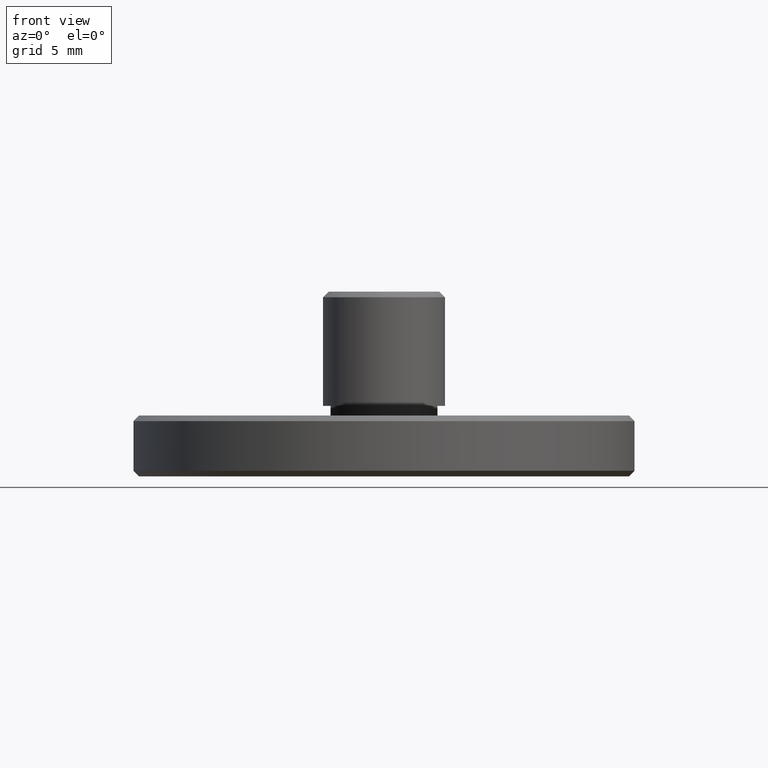
[diagram: clean part render]
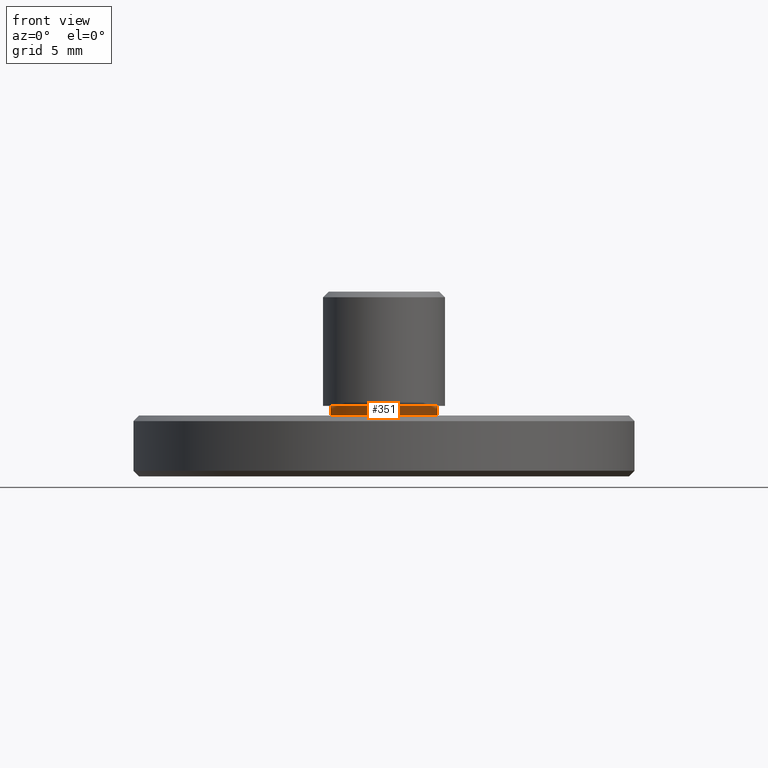
[diagram: same view with one face highlighted and labeled with its STEP entity id]
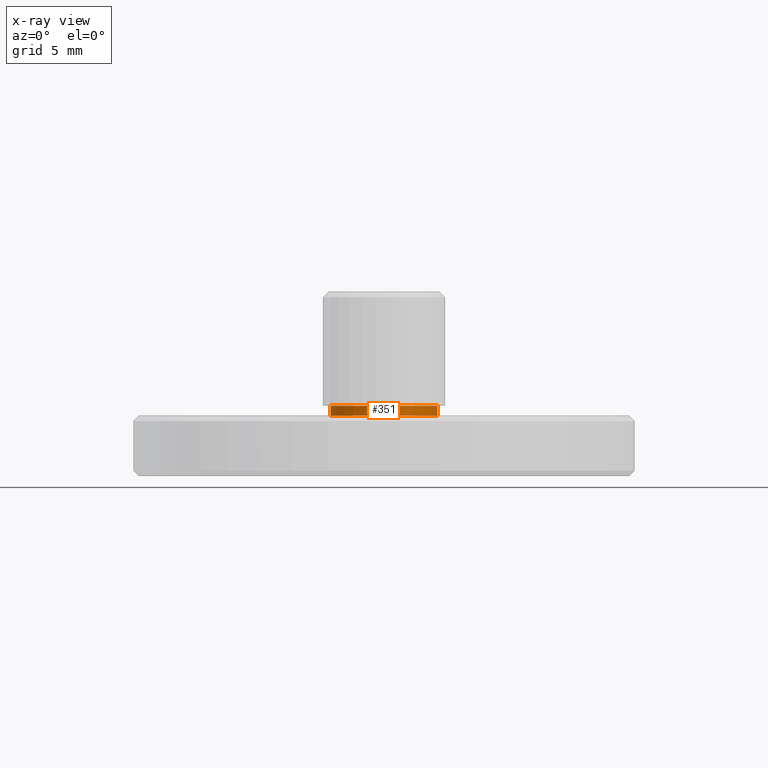
[diagram: x-ray of the same camera — body ghosted, the highlighted face saturated]
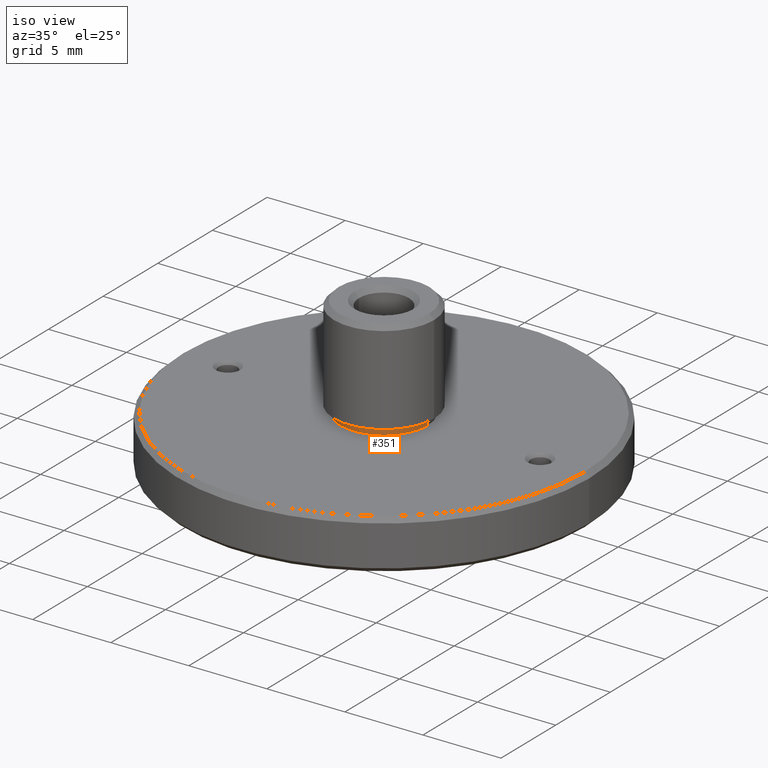
[diagram: same view with one face highlighted and labeled with its STEP entity id]
A machine part, front view. The second image highlights one B-rep face of the part: STEP entity #351.
The next image is the same camera in x-ray: the body ghosted, the highlighted face saturated — about 0% of this face is hidden behind the body in this view.
A second angle (iso view) of the same face is appended — the face is thin or edge-on in the first view.
In plain terms, the highlighted cylindrical surface (partial cylindrical patch) has radius 2.8 mm, axis along (0, -0, 1).
Its self-contained STEP definition (entity closure, byte-faithful):
#27 = DIRECTION ( 'NONE',  ( 1.000000000000000000, 0.000000000000000000, 0.000000000000000000 ) ) ;
#44 = DIRECTION ( 'NONE',  ( -0.000000000000000000, 0.000000000000000000, -1.000000000000000000 ) ) ;
#61 = EDGE_CURVE ( 'NONE', #133, #485, #272, .T. ) ;
#94 = VECTOR ( 'NONE', #484, 1000.000000000000000 ) ;
#107 = CARTESIAN_POINT ( 'NONE',  ( 2.799999999999999822, 0.000000000000000000, 3.700000000000000178 ) ) ;
#127 = VERTEX_POINT ( 'NONE', #611 ) ;
#133 = VERTEX_POINT ( 'NONE', #200 ) ;
#166 = CARTESIAN_POINT ( 'NONE',  ( 0.000000000000000000, 0.000000000000000000, 3.200000000000000178 ) ) ;
#172 = LINE ( 'NONE', #786, #247 ) ;
#184 = DIRECTION ( 'NONE',  ( 1.000000000000000000, 0.000000000000000000, 0.000000000000000000 ) ) ;
#200 = CARTESIAN_POINT ( 'NONE',  ( -2.799999999999999822, 3.429011037612588783E-16, 3.200000000000000178 ) ) ;
#204 = AXIS2_PLACEMENT_3D ( 'NONE', #872, #523, #801 ) ;
#216 = ORIENTED_EDGE ( 'NONE', *, *, #665, .T. ) ;
#247 = VECTOR ( 'NONE', #583, 1000.000000000000000 ) ;
#265 = CARTESIAN_POINT ( 'NONE',  ( 0.000000000000000000, 0.000000000000000000, 3.200000000000000178 ) ) ;
#272 = LINE ( 'NONE', #683, #94 ) ;
#351 = ADVANCED_FACE ( 'NONE', ( #732 ), #443, .T. ) ;
#361 = AXIS2_PLACEMENT_3D ( 'NONE', #166, #814, #27 ) ;
#425 = VERTEX_POINT ( 'NONE', #107 ) ;
#443 = CYLINDRICAL_SURFACE ( 'NONE', #361, 2.799999999999999822 ) ;
#484 = DIRECTION ( 'NONE',  ( 0.000000000000000000, -0.000000000000000000, 1.000000000000000000 ) ) ;
#485 = VERTEX_POINT ( 'NONE', #553 ) ;
#492 = ORIENTED_EDGE ( 'NONE', *, *, #713, .F. ) ;
#505 = EDGE_CURVE ( 'NONE', #127, #133, #882, .T. ) ;
#514 = AXIS2_PLACEMENT_3D ( 'NONE', #265, #44, #184 ) ;
#518 = ORIENTED_EDGE ( 'NONE', *, *, #505, .F. ) ;
#523 = DIRECTION ( 'NONE',  ( 0.000000000000000000, -0.000000000000000000, 1.000000000000000000 ) ) ;
#553 = CARTESIAN_POINT ( 'NONE',  ( -2.799999999999999822, 3.429011037612588783E-16, 3.700000000000000178 ) ) ;
#583 = DIRECTION ( 'NONE',  ( 0.000000000000000000, -0.000000000000000000, 1.000000000000000000 ) ) ;
#597 = EDGE_LOOP ( 'NONE', ( #731, #518, #216, #492 ) ) ;
#611 = CARTESIAN_POINT ( 'NONE',  ( 2.799999999999999822, 0.000000000000000000, 3.200000000000000178 ) ) ;
#646 = CIRCLE ( 'NONE', #204, 2.799999999999999822 ) ;
#665 = EDGE_CURVE ( 'NONE', #127, #425, #172, .T. ) ;
#683 = CARTESIAN_POINT ( 'NONE',  ( -2.799999999999999822, 3.429011037612588783E-16, 3.200000000000000178 ) ) ;
#713 = EDGE_CURVE ( 'NONE', #485, #425, #646, .T. ) ;
#731 = ORIENTED_EDGE ( 'NONE', *, *, #61, .F. ) ;
#732 = FACE_OUTER_BOUND ( 'NONE', #597, .T. ) ;
#786 = CARTESIAN_POINT ( 'NONE',  ( 2.799999999999999822, 0.000000000000000000, 3.200000000000000178 ) ) ;
#801 = DIRECTION ( 'NONE',  ( 1.000000000000000000, 0.000000000000000000, 0.000000000000000000 ) ) ;
#814 = DIRECTION ( 'NONE',  ( 0.000000000000000000, -0.000000000000000000, 1.000000000000000000 ) ) ;
#872 = CARTESIAN_POINT ( 'NONE',  ( 0.000000000000000000, 0.000000000000000000, 3.700000000000000178 ) ) ;
#882 = CIRCLE ( 'NONE', #514, 2.799999999999999822 ) ;